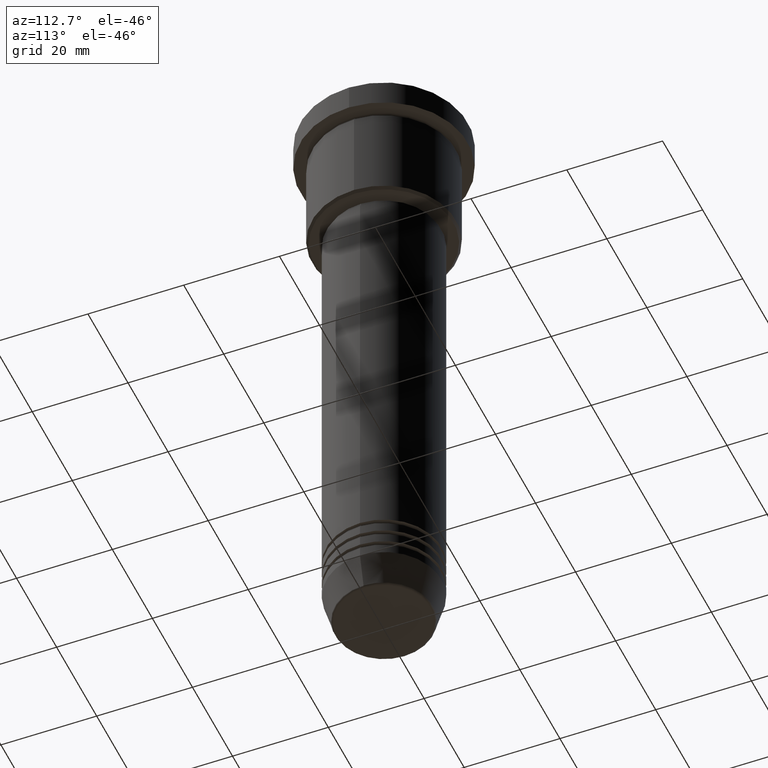
[diagram: clean part render]
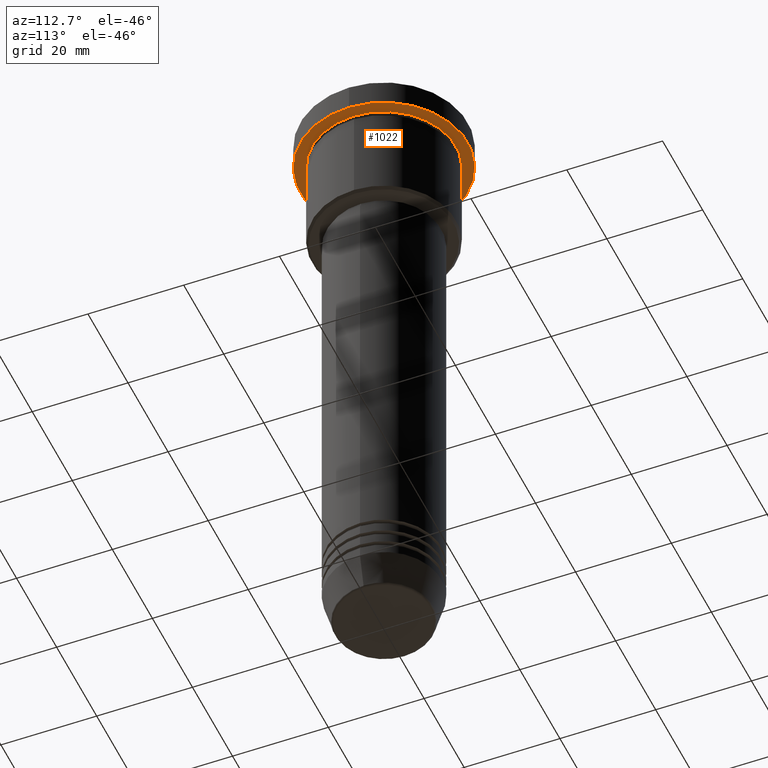
[diagram: same view with one face highlighted and labeled with its STEP entity id]
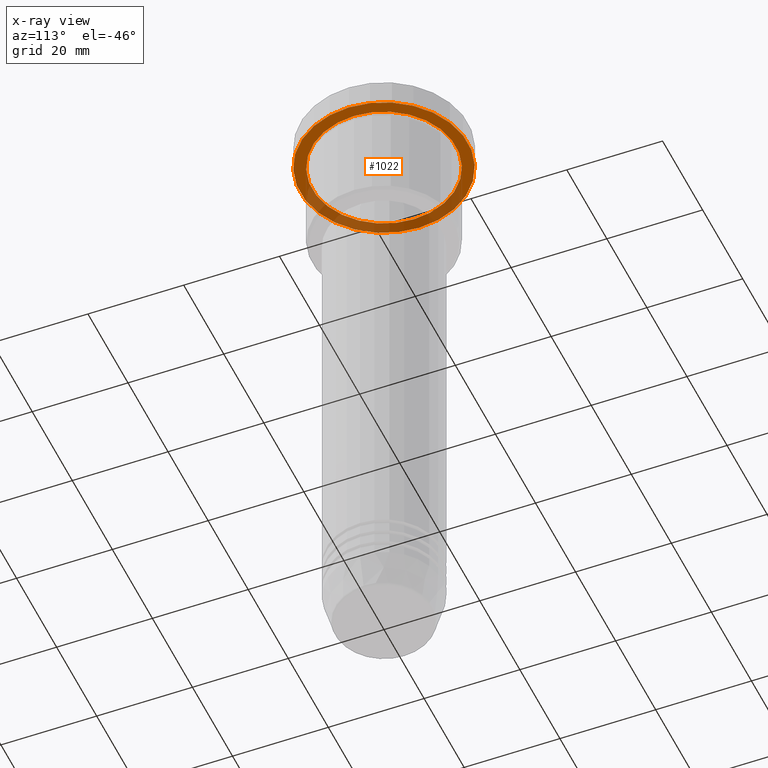
[diagram: x-ray of the same camera — body ghosted, the highlighted face saturated]
A machine part, auxiliary view. The second image highlights one B-rep face of the part: STEP entity #1022.
The next image is the same camera in x-ray: the body ghosted, the highlighted face saturated — about 36% of this face is hidden behind the body in this view.
In plain terms, the highlighted planar face has unit normal (0, 0, -1).
Its self-contained STEP definition (entity closure, byte-faithful):
#73 = FACE_OUTER_BOUND ( 'NONE', #464, .T. ) ;
#87 = DIRECTION ( 'NONE',  ( 1.000000000000000000, 0.000000000000000000, 0.000000000000000000 ) ) ;
#100 = CIRCLE ( 'NONE', #251, 15.00000000000000000 ) ;
#126 = EDGE_CURVE ( 'NONE', #453, #1096, #263, .T. ) ;
#133 = CARTESIAN_POINT ( 'NONE',  ( -17.50000000000000000, 2.143131898507868248E-15, -5.999999999999995559 ) ) ;
#140 = CIRCLE ( 'NONE', #229, 15.00000000000000000 ) ;
#164 = DIRECTION ( 'NONE',  ( 0.000000000000000000, 0.000000000000000000, -1.000000000000000000 ) ) ;
#172 = ORIENTED_EDGE ( 'NONE', *, *, #126, .F. ) ;
#182 = DIRECTION ( 'NONE',  ( -0.000000000000000000, -0.000000000000000000, 1.000000000000000000 ) ) ;
#210 = CARTESIAN_POINT ( 'NONE',  ( -15.00000000000000000, 0.000000000000000000, -5.999999999999994671 ) ) ;
#229 = AXIS2_PLACEMENT_3D ( 'NONE', #743, #474, #1024 ) ;
#251 = AXIS2_PLACEMENT_3D ( 'NONE', #545, #1063, #1161 ) ;
#257 = DIRECTION ( 'NONE',  ( -0.000000000000000000, -0.000000000000000000, 1.000000000000000000 ) ) ;
#263 = CIRCLE ( 'NONE', #910, 17.50000000000000000 ) ;
#269 = AXIS2_PLACEMENT_3D ( 'NONE', #433, #164, #966 ) ;
#273 = CARTESIAN_POINT ( 'NONE',  ( 17.50000000000000000, 0.000000000000000000, -5.999999999999995559 ) ) ;
#275 = VERTEX_POINT ( 'NONE', #210 ) ;
#329 = ORIENTED_EDGE ( 'NONE', *, *, #1122, .T. ) ;
#353 = FACE_BOUND ( 'NONE', #508, .T. ) ;
#433 = CARTESIAN_POINT ( 'NONE',  ( 0.000000000000000000, 17.50000000000000000, -5.999999999999995559 ) ) ;
#453 = VERTEX_POINT ( 'NONE', #133 ) ;
#464 = EDGE_LOOP ( 'NONE', ( #526, #172 ) ) ;
#474 = DIRECTION ( 'NONE',  ( -0.000000000000000000, -0.000000000000000000, 1.000000000000000000 ) ) ;
#508 = EDGE_LOOP ( 'NONE', ( #903, #329 ) ) ;
#526 = ORIENTED_EDGE ( 'NONE', *, *, #1004, .F. ) ;
#545 = CARTESIAN_POINT ( 'NONE',  ( 0.000000000000000000, 0.000000000000000000, -5.999999999999995559 ) ) ;
#560 = DIRECTION ( 'NONE',  ( 1.000000000000000000, 0.000000000000000000, 0.000000000000000000 ) ) ;
#631 = CIRCLE ( 'NONE', #786, 17.50000000000000000 ) ;
#640 = CARTESIAN_POINT ( 'NONE',  ( 0.000000000000000000, 0.000000000000000000, -5.999999999999995559 ) ) ;
#646 = VERTEX_POINT ( 'NONE', #1172 ) ;
#725 = PLANE ( 'NONE',  #269 ) ;
#743 = CARTESIAN_POINT ( 'NONE',  ( 0.000000000000000000, 0.000000000000000000, -5.999999999999995559 ) ) ;
#786 = AXIS2_PLACEMENT_3D ( 'NONE', #901, #257, #87 ) ;
#901 = CARTESIAN_POINT ( 'NONE',  ( 0.000000000000000000, 0.000000000000000000, -5.999999999999995559 ) ) ;
#903 = ORIENTED_EDGE ( 'NONE', *, *, #1034, .T. ) ;
#910 = AXIS2_PLACEMENT_3D ( 'NONE', #640, #182, #560 ) ;
#966 = DIRECTION ( 'NONE',  ( -1.000000000000000000, 0.000000000000000000, -0.000000000000000000 ) ) ;
#1004 = EDGE_CURVE ( 'NONE', #1096, #453, #631, .T. ) ;
#1022 = ADVANCED_FACE ( 'NONE', ( #353, #73 ), #725, .T. ) ;
#1024 = DIRECTION ( 'NONE',  ( -1.000000000000000000, 0.000000000000000000, 0.000000000000000000 ) ) ;
#1034 = EDGE_CURVE ( 'NONE', #275, #646, #100, .T. ) ;
#1063 = DIRECTION ( 'NONE',  ( -0.000000000000000000, -0.000000000000000000, 1.000000000000000000 ) ) ;
#1096 = VERTEX_POINT ( 'NONE', #273 ) ;
#1122 = EDGE_CURVE ( 'NONE', #646, #275, #140, .T. ) ;
#1161 = DIRECTION ( 'NONE',  ( -1.000000000000000000, 0.000000000000000000, 0.000000000000000000 ) ) ;
#1172 = CARTESIAN_POINT ( 'NONE',  ( 15.00000000000000000, 1.836970198721029589E-15, -5.999999999999994671 ) ) ;